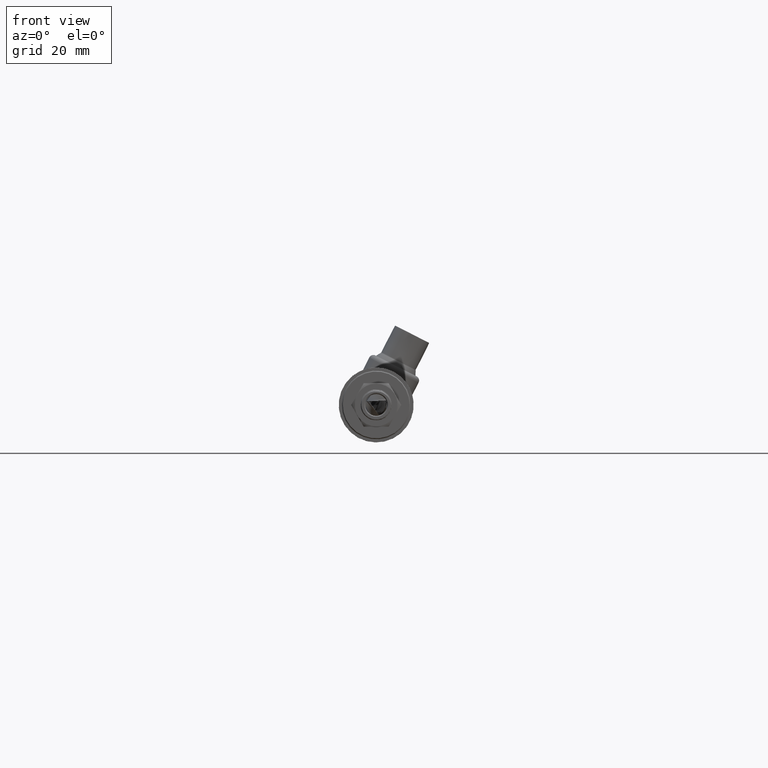
[diagram: clean part render]
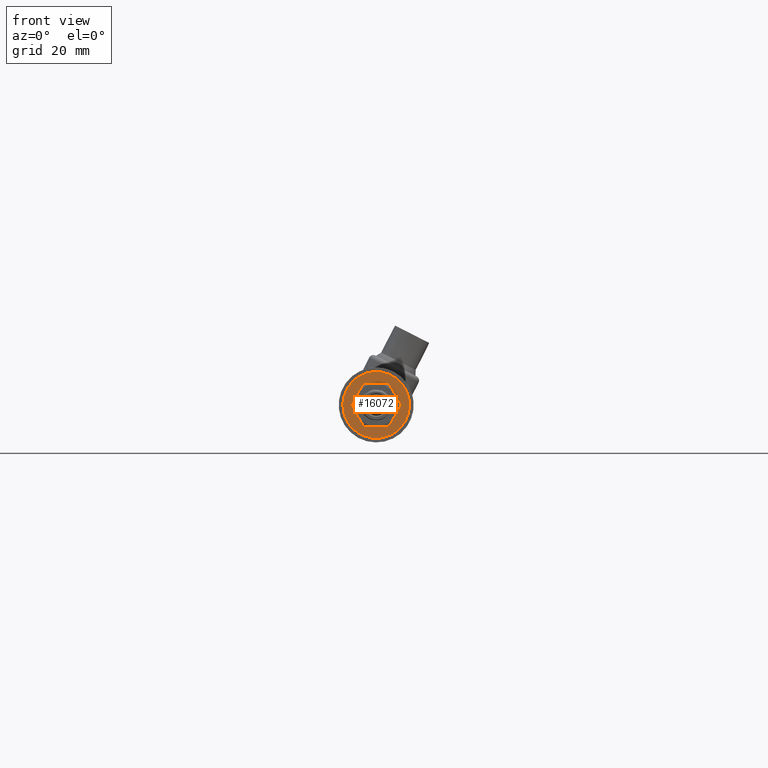
[diagram: same view with one face highlighted and labeled with its STEP entity id]
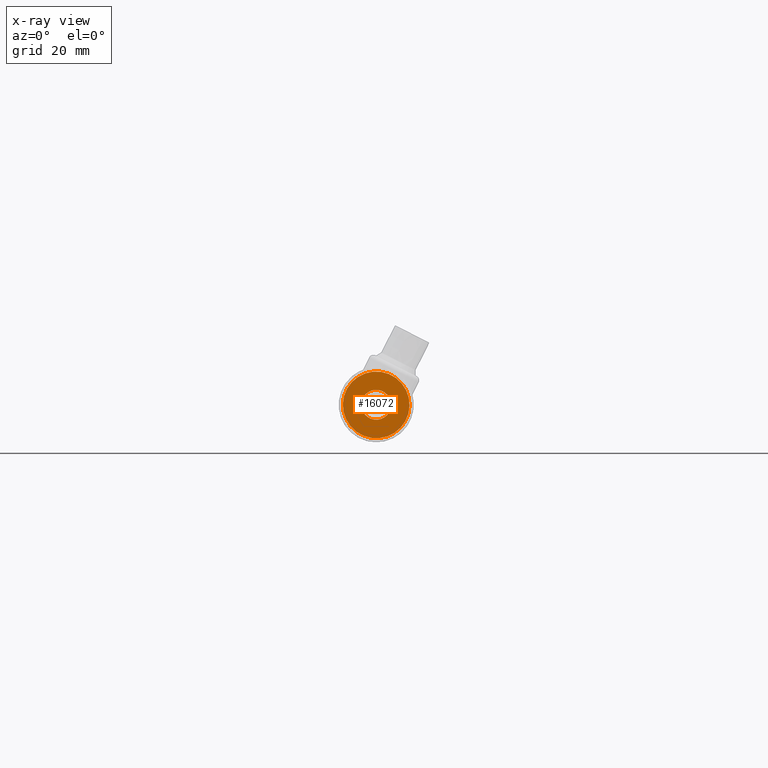
[diagram: x-ray of the same camera — body ghosted, the highlighted face saturated]
A machine part, front view. The second image highlights one B-rep face of the part: STEP entity #16072.
The next image is the same camera in x-ray: the body ghosted, the highlighted face saturated — about 2% of this face is hidden behind the body in this view.
In plain terms, the highlighted planar face has unit normal (-0, -1, 0).
Its self-contained STEP definition (entity closure, byte-faithful):
#529 = VERTEX_POINT ( 'NONE', #16737 ) ;
#1322 = EDGE_LOOP ( 'NONE', ( #10712, #19171 ) ) ;
#1354 = CARTESIAN_POINT ( 'NONE',  ( 0.000000000000000000, 10.30000000000000071, 0.000000000000000000 ) ) ;
#1424 = DIRECTION ( 'NONE',  ( 0.000000000000000000, 0.000000000000000000, 1.000000000000000000 ) ) ;
#2599 = EDGE_CURVE ( 'NONE', #21868, #529, #16451, .T. ) ;
#2867 = PLANE ( 'NONE',  #16890 ) ;
#4033 = CIRCLE ( 'NONE', #17549, 4.799999999999995381 ) ;
#4047 = VERTEX_POINT ( 'NONE', #7488 ) ;
#4851 = ORIENTED_EDGE ( 'NONE', *, *, #18011, .T. ) ;
#4919 = DIRECTION ( 'NONE',  ( 0.000000000000000000, 1.000000000000000000, 0.000000000000000000 ) ) ;
#6834 = CARTESIAN_POINT ( 'NONE',  ( 0.000000000000000000, 10.30000000000000071, -10.70000000000000995 ) ) ;
#6965 = FACE_BOUND ( 'NONE', #1322, .T. ) ;
#7488 = CARTESIAN_POINT ( 'NONE',  ( 0.000000000000000000, 10.30000000000000071, 4.799999999999995381 ) ) ;
#8239 = CARTESIAN_POINT ( 'NONE',  ( 0.000000000000000000, 10.30000000000000071, 0.000000000000000000 ) ) ;
#8625 = FACE_OUTER_BOUND ( 'NONE', #10398, .T. ) ;
#10208 = CARTESIAN_POINT ( 'NONE',  ( 0.000000000000000000, 10.30000000000000071, 0.000000000000000000 ) ) ;
#10398 = EDGE_LOOP ( 'NONE', ( #19660, #4851 ) ) ;
#10433 = DIRECTION ( 'NONE',  ( 0.000000000000000000, 0.000000000000000000, 1.000000000000000000 ) ) ;
#10518 = DIRECTION ( 'NONE',  ( 0.000000000000000000, 0.000000000000000000, 1.000000000000000000 ) ) ;
#10712 = ORIENTED_EDGE ( 'NONE', *, *, #19133, .T. ) ;
#11229 = AXIS2_PLACEMENT_3D ( 'NONE', #1354, #4919, #1424 ) ;
#11813 = DIRECTION ( 'NONE',  ( 0.000000000000000000, 1.000000000000000000, 0.000000000000000000 ) ) ;
#12737 = CIRCLE ( 'NONE', #22461, 10.70000000000000995 ) ;
#13705 = DIRECTION ( 'NONE',  ( 0.000000000000000000, -0.000000000000000000, 1.000000000000000000 ) ) ;
#16072 = ADVANCED_FACE ( 'NONE', ( #6965, #8625 ), #2867, .T. ) ;
#16451 = CIRCLE ( 'NONE', #11229, 10.70000000000000995 ) ;
#16737 = CARTESIAN_POINT ( 'NONE',  ( 1.328741777074878961E-15, 10.30000000000000071, 10.70000000000000995 ) ) ;
#16890 = AXIS2_PLACEMENT_3D ( 'NONE', #17052, #11813, #13705 ) ;
#17052 = CARTESIAN_POINT ( 'NONE',  ( 0.000000000000000000, 10.30000000000000071, 0.000000000000000000 ) ) ;
#17422 = DIRECTION ( 'NONE',  ( -0.000000000000000000, -1.000000000000000000, -0.000000000000000000 ) ) ;
#17549 = AXIS2_PLACEMENT_3D ( 'NONE', #21303, #23126, #10518 ) ;
#18011 = EDGE_CURVE ( 'NONE', #529, #21868, #12737, .T. ) ;
#18595 = AXIS2_PLACEMENT_3D ( 'NONE', #10208, #17422, #10433 ) ;
#19092 = CARTESIAN_POINT ( 'NONE',  ( 5.878304635907289281E-16, 10.30000000000000071, -4.799999999999995381 ) ) ;
#19133 = EDGE_CURVE ( 'NONE', #4047, #22480, #4033, .T. ) ;
#19171 = ORIENTED_EDGE ( 'NONE', *, *, #22470, .T. ) ;
#19660 = ORIENTED_EDGE ( 'NONE', *, *, #2599, .T. ) ;
#20560 = DIRECTION ( 'NONE',  ( 0.000000000000000000, 1.000000000000000000, 0.000000000000000000 ) ) ;
#21303 = CARTESIAN_POINT ( 'NONE',  ( 0.000000000000000000, 10.30000000000000071, 0.000000000000000000 ) ) ;
#21868 = VERTEX_POINT ( 'NONE', #6834 ) ;
#22303 = DIRECTION ( 'NONE',  ( 0.000000000000000000, 0.000000000000000000, 1.000000000000000000 ) ) ;
#22430 = CIRCLE ( 'NONE', #18595, 4.799999999999995381 ) ;
#22461 = AXIS2_PLACEMENT_3D ( 'NONE', #8239, #20560, #22303 ) ;
#22470 = EDGE_CURVE ( 'NONE', #22480, #4047, #22430, .T. ) ;
#22480 = VERTEX_POINT ( 'NONE', #19092 ) ;
#23126 = DIRECTION ( 'NONE',  ( -0.000000000000000000, -1.000000000000000000, -0.000000000000000000 ) ) ;